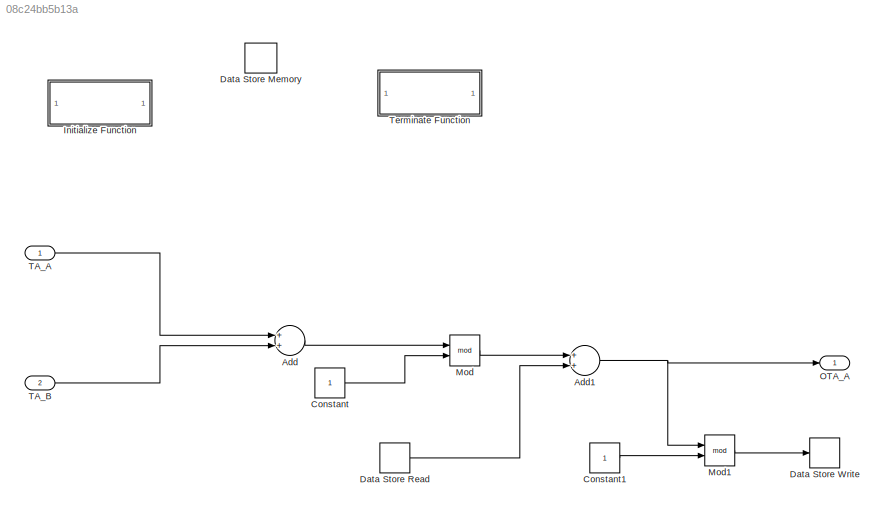
MODEL slx_08c24bb5b13a
KIND model
CONFIG AbsTol = auto
CONFIG EnableMultiTasking = off
CONFIG FixedStep = auto
CONFIG MaxStep = auto
CONFIG MinStep = auto
CONFIG RelTol = 1e-3
CONFIG SampleTimeConstraint = Unconstrained
CONFIG Solver = FixedStepDiscrete
CONFIG SolverName = FixedStepDiscrete
CONFIG StartTime = 0.0
CONFIG StopTime = 10.0
BLOCK [Sum] Add
  InputSameDT = off
  OutDataTypeStr = Inherit: Inherit via internal rule
  Ports = [2, 1]
  SaturateOnIntegerOverflow = off
BLOCK [Sum] Add1
  InputSameDT = off
  OutDataTypeStr = Inherit: Inherit via internal rule
  Ports = [2, 1]
  SaturateOnIntegerOverflow = off
BLOCK [Constant] Constant
  OutDataTypeStr = uint8
BLOCK [Constant] Constant1
  OutDataTypeStr = uint8
BLOCK [DataStoreMemory] Data Store Memory
  DataStoreName = B
  ReadBeforeWriteMsg = warning
  ShowAdditionalParam = off
  WriteAfterReadMsg = warning
  WriteAfterWriteMsg = warning
BLOCK [DataStoreRead] Data Store Read
  DataStoreName = B
  Ports = [0, 1]
BLOCK [DataStoreWrite] Data Store Write
  DataStoreName = B
  Ports = [1]
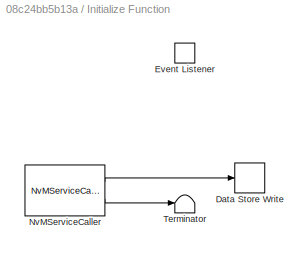
BLOCK [SubSystem] Initialize Function
  Ports = []
  RequestExecContextInheritance = off
  TreatAsAtomicUnit = on
BLOCK [DataStoreWrite] Initialize Function/Data Store Write
  DataStoreName = B
  Ports = [1]
BLOCK [EventListener] Initialize Function/Event Listener
  DisableCoverage = on
  EventName = reset
BLOCK [Reference] Initialize Function/NvMServiceCaller  REF=autosarspkglib/Basic Software/NVRAM Manager (NvM)/NvMServiceCaller
  Ports = [0, 2]
  SourceBlock = autosarspkglib/Basic Software/NVRAM Manager (NvM)/NvMServiceCaller
  SourceProductBaseCode = EC_AUTOSAR
  SourceProductName = Embedded Coder Support Package for AUTOSAR Standard
  SourceType = NvMServiceCaller
BLOCK [Terminator] Initialize Function/Terminator
BLOCK [Math] Mod
  Operator = mod
  Ports = [2, 1]
BLOCK [Math] Mod1
  Operator = mod
  Ports = [2, 1]
BLOCK [Outport] OTA_A
  IconDisplay = Port number
BLOCK [Inport] TA_A
  IconDisplay = Port number
BLOCK [Inport] TA_B
  IconDisplay = Port number
  Port = 2
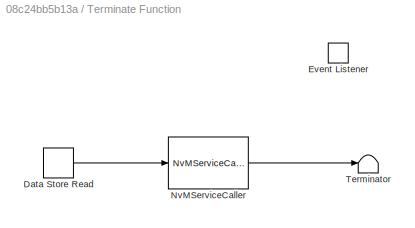
BLOCK [SubSystem] Terminate Function
  Ports = []
  RequestExecContextInheritance = off
  TreatAsAtomicUnit = on
BLOCK [DataStoreRead] Terminate Function/Data Store Read
  DataStoreName = B
  Ports = [0, 1]
BLOCK [EventListener] Terminate Function/Event Listener
  DisableCoverage = on
  EventName = reset
  EventType = Terminate
BLOCK [Reference] Terminate Function/NvMServiceCaller  REF=autosarspkglib/Basic Software/NVRAM Manager (NvM)/NvMServiceCaller
  Ports = [1, 1]
  SourceBlock = autosarspkglib/Basic Software/NVRAM Manager (NvM)/NvMServiceCaller
  SourceProductBaseCode = EC_AUTOSAR
  SourceProductName = Embedded Coder Support Package for AUTOSAR Standard
  SourceType = NvMServiceCaller
BLOCK [Terminator] Terminate Function/Terminator
NET Add1:1 -> Mod1:1, OTA_A:1
LINE Add:1 -> Mod:1
LINE Constant1:1 -> Mod1:2
LINE Constant:1 -> Mod:2
LINE Data Store Read:1 -> Add1:2
LINE Initialize Function/NvMServiceCaller:1 -> Initialize Function/Data Store Write:1
LINE Initialize Function/NvMServiceCaller:2 -> Initialize Function/Terminator:1
LINE Mod1:1 -> Data Store Write:1
LINE Mod:1 -> Add1:1
LINE TA_A:1 -> Add:1
LINE TA_B:1 -> Add:2
LINE Terminate Function/Data Store Read:1 -> Terminate Function/NvMServiceCaller:1
LINE Terminate Function/NvMServiceCaller:1 -> Terminate Function/Terminator:1
note: NET lines group one-source signal fan-out (src -> all destinations, sorted); 1:1 wires keep LINE
